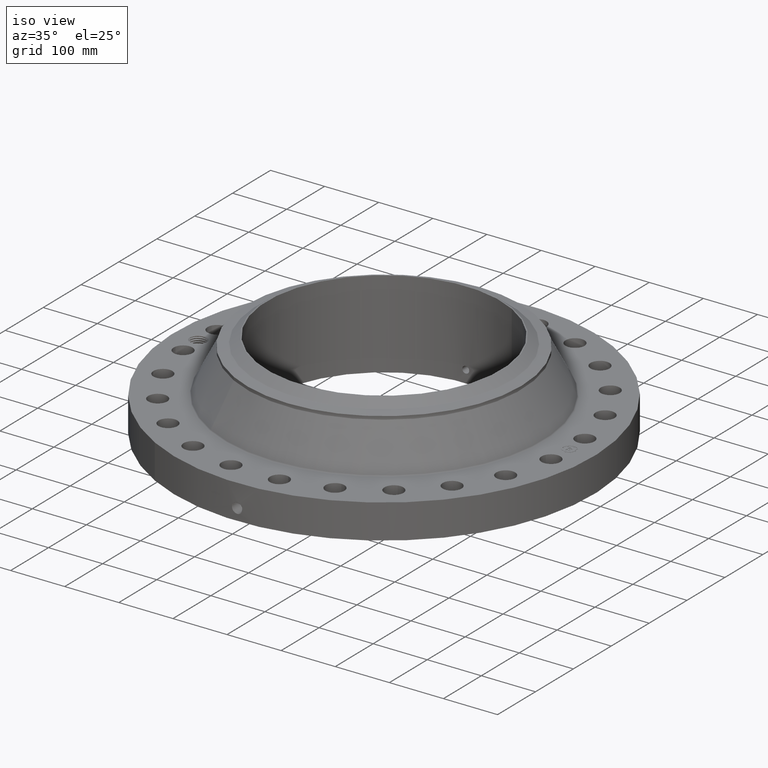
[diagram: clean part render]
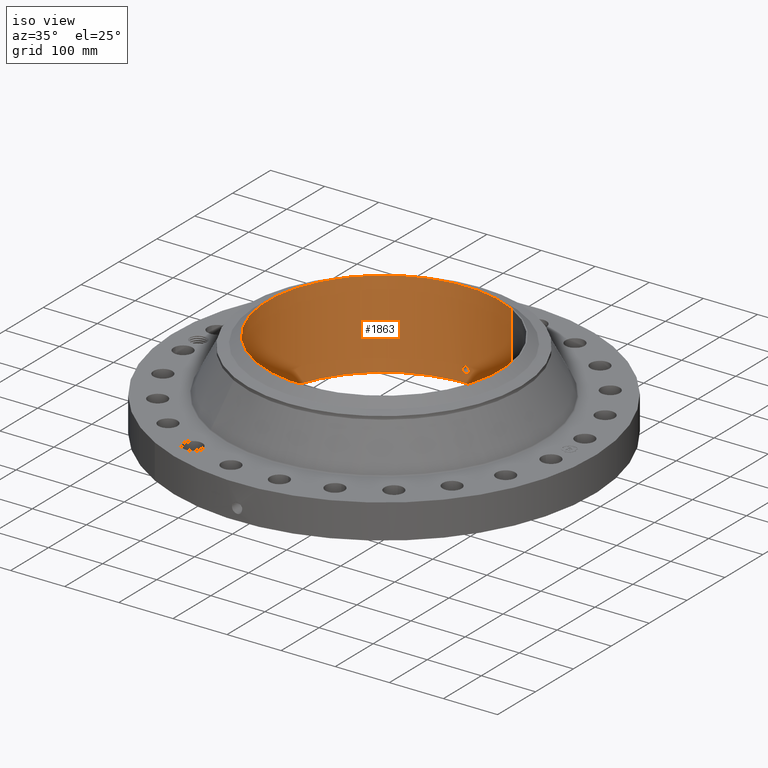
[diagram: same view with one face highlighted and labeled with its STEP entity id]
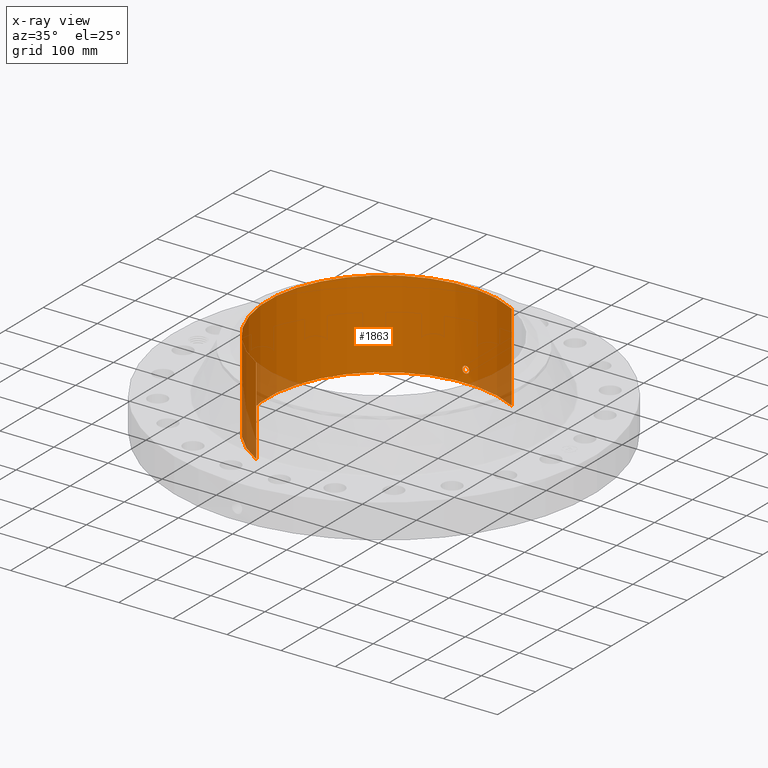
[diagram: x-ray of the same camera — body ghosted, the highlighted face saturated]
A machine part, iso view. The second image highlights one B-rep face of the part: STEP entity #1863.
The next image is the same camera in x-ray: the body ghosted, the highlighted face saturated — about 8% of this face is hidden behind the body in this view.
In plain terms, the highlighted cylindrical surface (partial cylindrical patch) has radius 215.9 mm, axis along (0, 0, -1).
Its self-contained STEP definition (entity closure, byte-faithful):
#267=AXIS2_PLACEMENT_3D('Circle Axis2P3D',#265,#266,$) ;
#1740=AXIS2_PLACEMENT_3D('Cylinder Axis2P3D',#1737,#1738,#1739) ;
#1812=AXIS2_PLACEMENT_3D('Circle Axis2P3D',#1810,#1811,$) ;
#260=CARTESIAN_POINT('Vertex',(4.07511707815,7.4594517761,0.0600000000002)) ;
#262=CARTESIAN_POINT('Vertex',(-4.07511707815,-7.4594517761,0.0600000000002)) ;
#265=CARTESIAN_POINT('Axis2P3D Location',(0.,0.,0.0600000000002)) ;
#1737=CARTESIAN_POINT('Axis2P3D Location',(0.,0.,3.25000000001)) ;
#1746=CARTESIAN_POINT('Vertex',(4.07511707815,7.4594517761,6.44000000003)) ;
#1748=CARTESIAN_POINT('Vertex',(-4.07511707815,-7.4594517761,6.44000000003)) ;
#1751=CARTESIAN_POINT('Line Origine',(4.07511707815,7.4594517761,3.25000000001)) ;
#1756=CARTESIAN_POINT('Line Origine',(-4.07511707815,-7.4594517761,3.25000000001)) ;
#1810=CARTESIAN_POINT('Axis2P3D Location',(0.,0.,6.44000000003)) ;
#1822=CARTESIAN_POINT('Control Point',(0.219395640473,8.49716809022,1.05985638466)) ;
#1823=CARTESIAN_POINT('Control Point',(0.194443120259,8.49781236066,1.10553166653)) ;
#1824=CARTESIAN_POINT('Control Point',(0.157605673563,8.4986718436,1.14471106187)) ;
#1825=CARTESIAN_POINT('Control Point',(0.111109047565,8.49950770969,1.17324265378)) ;
#1826=CARTESIAN_POINT('Control Point',(0.0336745179345,8.50017275739,1.19588241444)) ;
#1827=CARTESIAN_POINT('Control Point',(-0.0446699380336,8.49994295238,1.18805652842)) ;
#1828=CARTESIAN_POINT('Control Point',(-0.0702993750359,8.49976455241,1.18204411458)) ;
#1829=CARTESIAN_POINT('Control Point',(-0.143955109936,8.49897618111,1.15421280445)) ;
#1830=CARTESIAN_POINT('Control Point',(-0.203242425529,8.49768931437,1.09949946117)) ;
#1831=CARTESIAN_POINT('Control Point',(-0.232208125466,8.49684524708,1.05326122513)) ;
#1832=CARTESIAN_POINT('Control Point',(-0.25584024887,8.49615133503,0.975114128146)) ;
#1833=CARTESIAN_POINT('Control Point',(-0.248283243813,8.49637304961,0.895748626883)) ;
#1834=CARTESIAN_POINT('Control Point',(-0.242049456257,8.496558599,0.86918539543)) ;
#1835=CARTESIAN_POINT('Control Point',(-0.23231575957,8.49683449463,0.843793734722)) ;
#1836=CARTESIAN_POINT('Control Point',(-0.219395640473,8.49716809022,0.820143615352)) ;
#1837=CARTESIAN_POINT('Vertex',(0.219395640473,8.49716809022,1.05985638466)) ;
#1839=CARTESIAN_POINT('Vertex',(-0.219395640473,8.49716809022,0.820143615352)) ;
#1843=CARTESIAN_POINT('Control Point',(-0.219395640473,8.49716809022,0.820143615352)) ;
#1844=CARTESIAN_POINT('Control Point',(-0.194443120268,8.49781236066,0.774468333491)) ;
#1845=CARTESIAN_POINT('Control Point',(-0.157605673591,8.4986718436,0.735288938165)) ;
#1846=CARTESIAN_POINT('Control Point',(-0.111109047528,8.49950770969,0.706757346218)) ;
#1847=CARTESIAN_POINT('Control Point',(-0.0336745179182,8.50017275739,0.684117585567)) ;
#1848=CARTESIAN_POINT('Control Point',(0.0446699380296,8.49994295238,0.691943471583)) ;
#1849=CARTESIAN_POINT('Control Point',(0.0702993750339,8.49976455241,0.697955885427)) ;
#1850=CARTESIAN_POINT('Control Point',(0.143955109934,8.49897618111,0.725787195555)) ;
#1851=CARTESIAN_POINT('Control Point',(0.203242425529,8.49768931437,0.780500538837)) ;
#1852=CARTESIAN_POINT('Control Point',(0.232208125465,8.49684524708,0.826738774872)) ;
#1853=CARTESIAN_POINT('Control Point',(0.255840248858,8.49615133503,0.904885871823)) ;
#1854=CARTESIAN_POINT('Control Point',(0.248283243821,8.49637304961,0.98425137305)) ;
#1855=CARTESIAN_POINT('Control Point',(0.242049456232,8.496558599,1.01081460464)) ;
#1856=CARTESIAN_POINT('Control Point',(0.232315759553,8.49683449463,1.03620626532)) ;
#1857=CARTESIAN_POINT('Control Point',(0.219395640473,8.49716809022,1.05985638466)) ;
#266=DIRECTION('Axis2P3D Direction',(0.,0.,-0.0393700787402)) ;
#1738=DIRECTION('Axis2P3D Direction',(0.,0.,-0.0393700787402)) ;
#1739=DIRECTION('Axis2P3D XDirection',(-0.0188750212049,-0.0345504945626,0.)) ;
#1752=DIRECTION('Vector Direction',(0.,0.,-0.0393700787402)) ;
#1757=DIRECTION('Vector Direction',(0.,0.,-0.0393700787402)) ;
#1811=DIRECTION('Axis2P3D Direction',(0.,0.,-0.0393700787402)) ;
#1753=VECTOR('Line Direction',#1752,0.0393700787402) ;
#1758=VECTOR('Line Direction',#1757,0.0393700787402) ;
#1816=ORIENTED_EDGE('',*,*,#1814,.F.) ;
#1817=ORIENTED_EDGE('',*,*,#1760,.T.) ;
#1818=ORIENTED_EDGE('',*,*,#269,.T.) ;
#1819=ORIENTED_EDGE('',*,*,#1755,.F.) ;
#1860=ORIENTED_EDGE('',*,*,#1841,.F.) ;
#1861=ORIENTED_EDGE('',*,*,#1858,.F.) ;
#1862=FACE_BOUND('',#1859,.T.) ;
#1863=ADVANCED_FACE('PartBody',(#1820,#1862),#1741,.F.) ;
#1821=B_SPLINE_CURVE_WITH_KNOTS('',5,(#1822,#1823,#1824,#1825,#1826,#1827,#1828,#1829,#1830,#1831,#1832,#1833,#1834,#1835,#1836),.UNSPECIFIED.,.F.,.U.,(6,3,3,3,6),(0.,9.34857123046,14.0228372817,23.3728719479,28.2134512819),.UNSPECIFIED.) ;
#1842=B_SPLINE_CURVE_WITH_KNOTS('',5,(#1843,#1844,#1845,#1846,#1847,#1848,#1849,#1850,#1851,#1852,#1853,#1854,#1855,#1856,#1857),.UNSPECIFIED.,.F.,.U.,(6,3,3,3,6),(0.,9.34857122689,14.0228372781,23.3728719444,28.213451272),.UNSPECIFIED.) ;
#268=CIRCLE('generated circle',#267,8.50000000003) ;
#1813=CIRCLE('generated circle',#1812,8.50000000003) ;
#1741=CYLINDRICAL_SURFACE('generated cylinder',#1740,8.50000000003) ;
#269=EDGE_CURVE('',#263,#261,#268,.T.) ;
#1755=EDGE_CURVE('',#1747,#261,#1754,.T.) ;
#1760=EDGE_CURVE('',#1749,#263,#1759,.T.) ;
#1814=EDGE_CURVE('',#1749,#1747,#1813,.T.) ;
#1841=EDGE_CURVE('',#1838,#1840,#1821,.T.) ;
#1858=EDGE_CURVE('',#1840,#1838,#1842,.T.) ;
#1815=EDGE_LOOP('',(#1816,#1817,#1818,#1819)) ;
#1859=EDGE_LOOP('',(#1860,#1861)) ;
#1820=FACE_OUTER_BOUND('',#1815,.T.) ;
#1754=LINE('Line',#1751,#1753) ;
#1759=LINE('Line',#1756,#1758) ;
#261=VERTEX_POINT('',#260) ;
#263=VERTEX_POINT('',#262) ;
#1747=VERTEX_POINT('',#1746) ;
#1749=VERTEX_POINT('',#1748) ;
#1838=VERTEX_POINT('',#1837) ;
#1840=VERTEX_POINT('',#1839) ;